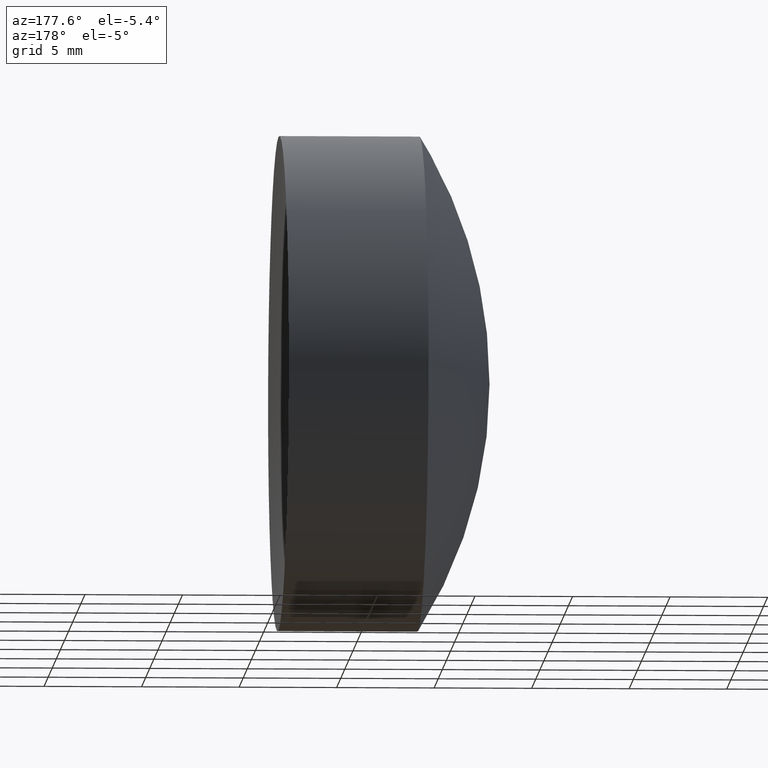
[diagram: clean part render]
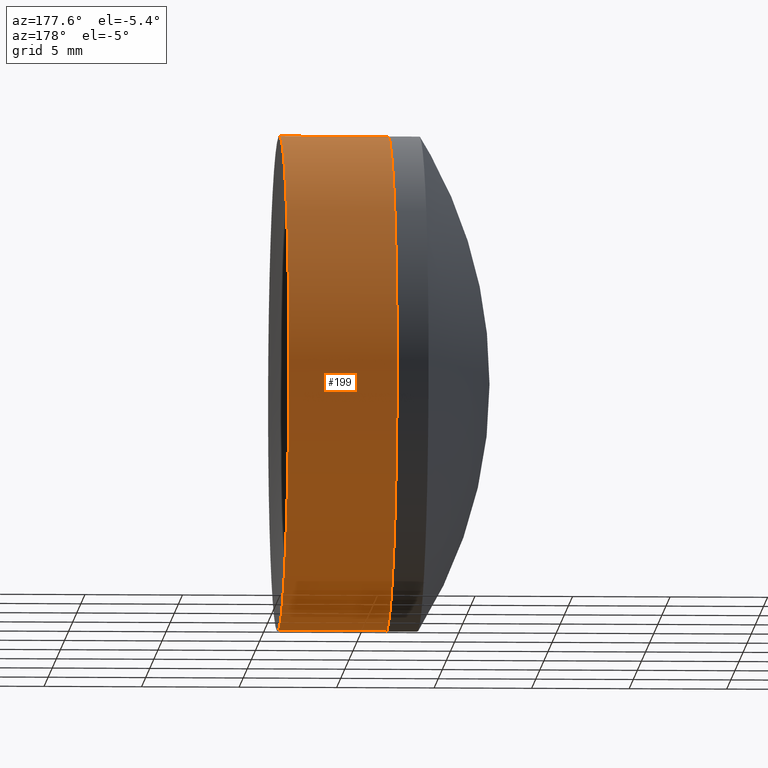
[diagram: same view with one face highlighted and labeled with its STEP entity id]
A machine part, auxiliary view. The second image highlights one B-rep face of the part: STEP entity #199.
In plain terms, the highlighted cylindrical surface (partial cylindrical patch) has radius 12.7 mm, axis along (-1, -0, -0).
Its self-contained STEP definition (entity closure, byte-faithful):
#10 = CARTESIAN_POINT ( 'NONE',  ( 44.02847447573057600, 0.0000000000000000000, -12.70000000000000300 ) ) ;
#16 = CIRCLE ( 'NONE', #332, 12.70000000000001500 ) ;
#19 = FACE_OUTER_BOUND ( 'NONE', #235, .T. ) ;
#45 = DIRECTION ( 'NONE',  ( -1.000000000000000000, -0.0000000000000000000, -0.0000000000000000000 ) ) ;
#54 = VERTEX_POINT ( 'NONE', #211 ) ;
#59 = CYLINDRICAL_SURFACE ( 'NONE', #171, 12.70000000000001700 ) ;
#60 = CARTESIAN_POINT ( 'NONE',  ( -0.5519199926577972300, 1.555301434917140600E-015, -12.70000000000001700 ) ) ;
#78 = DIRECTION ( 'NONE',  ( 0.0000000000000000000, 0.0000000000000000000, 1.000000000000000000 ) ) ;
#81 = CIRCLE ( 'NONE', #124, 12.70000000000001700 ) ;
#86 = CARTESIAN_POINT ( 'NONE',  ( -0.5519199926577972300, 0.0000000000000000000, 0.0000000000000000000 ) ) ;
#102 = DIRECTION ( 'NONE',  ( 0.0000000000000000000, 0.0000000000000000000, 1.000000000000000000 ) ) ;
#109 = CARTESIAN_POINT ( 'NONE',  ( 44.02847447573057600, -1.555301434917138800E-015, 12.70000000000000300 ) ) ;
#114 = EDGE_CURVE ( 'NONE', #54, #190, #16, .T. ) ;
#124 = AXIS2_PLACEMENT_3D ( 'NONE', #170, #298, #78 ) ;
#134 = DIRECTION ( 'NONE',  ( -1.000000000000000000, -0.0000000000000000000, -0.0000000000000000000 ) ) ;
#145 = VERTEX_POINT ( 'NONE', #10 ) ;
#170 = CARTESIAN_POINT ( 'NONE',  ( 44.02847447573056900, 0.0000000000000000000, 0.0000000000000000000 ) ) ;
#171 = AXIS2_PLACEMENT_3D ( 'NONE', #86, #261, #102 ) ;
#172 = ORIENTED_EDGE ( 'NONE', *, *, #312, .T. ) ;
#175 = ORIENTED_EDGE ( 'NONE', *, *, #114, .F. ) ;
#190 = VERTEX_POINT ( 'NONE', #203 ) ;
#196 = VERTEX_POINT ( 'NONE', #109 ) ;
#199 = ADVANCED_FACE ( 'NONE', ( #19 ), #59, .T. ) ;
#203 = CARTESIAN_POINT ( 'NONE',  ( 38.47534975385648400, 1.555301434917139200E-015, -12.70000000000001400 ) ) ;
#210 = EDGE_CURVE ( 'NONE', #145, #190, #258, .T. ) ;
#211 = CARTESIAN_POINT ( 'NONE',  ( 38.47534975385648400, 0.0000000000000000000, 12.70000000000000300 ) ) ;
#217 = LINE ( 'NONE', #307, #255 ) ;
#235 = EDGE_LOOP ( 'NONE', ( #172, #256, #175, #282 ) ) ;
#238 = DIRECTION ( 'NONE',  ( -1.000000000000000000, -0.0000000000000000000, -0.0000000000000000000 ) ) ;
#255 = VECTOR ( 'NONE', #238, 1000.000000000000000 ) ;
#256 = ORIENTED_EDGE ( 'NONE', *, *, #210, .T. ) ;
#258 = LINE ( 'NONE', #60, #291 ) ;
#261 = DIRECTION ( 'NONE',  ( -1.000000000000000000, -0.0000000000000000000, -0.0000000000000000000 ) ) ;
#282 = ORIENTED_EDGE ( 'NONE', *, *, #284, .F. ) ;
#284 = EDGE_CURVE ( 'NONE', #196, #54, #217, .T. ) ;
#291 = VECTOR ( 'NONE', #45, 1000.000000000000000 ) ;
#292 = CARTESIAN_POINT ( 'NONE',  ( 38.47534975385649100, 0.0000000000000000000, 0.0000000000000000000 ) ) ;
#296 = DIRECTION ( 'NONE',  ( 0.0000000000000000000, 0.0000000000000000000, 1.000000000000000000 ) ) ;
#298 = DIRECTION ( 'NONE',  ( -1.000000000000000000, -0.0000000000000000000, -0.0000000000000000000 ) ) ;
#307 = CARTESIAN_POINT ( 'NONE',  ( -0.5519199926577972300, 0.0000000000000000000, 12.70000000000001700 ) ) ;
#312 = EDGE_CURVE ( 'NONE', #196, #145, #81, .T. ) ;
#332 = AXIS2_PLACEMENT_3D ( 'NONE', #292, #134, #296 ) ;